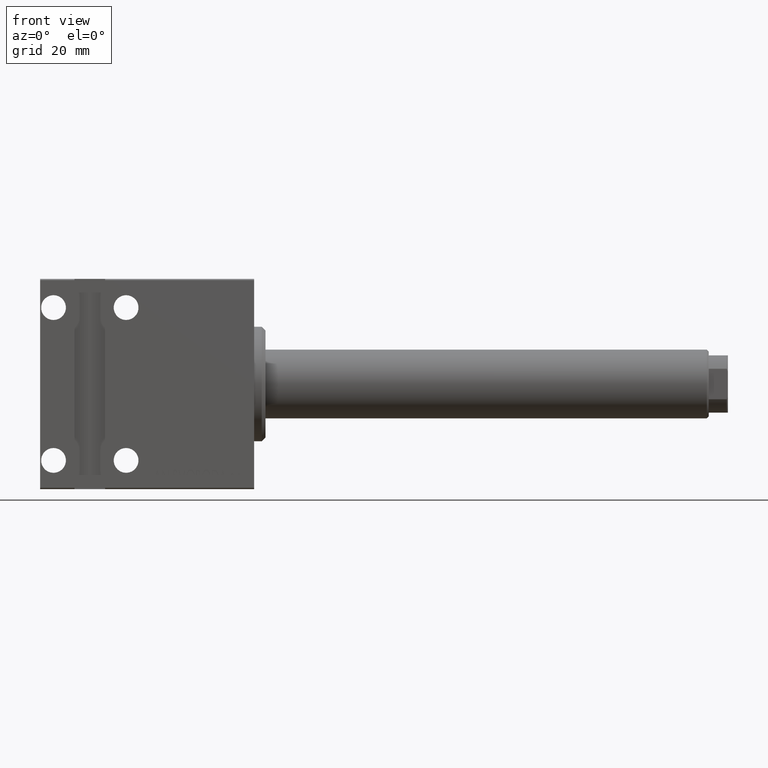
[diagram: clean part render]
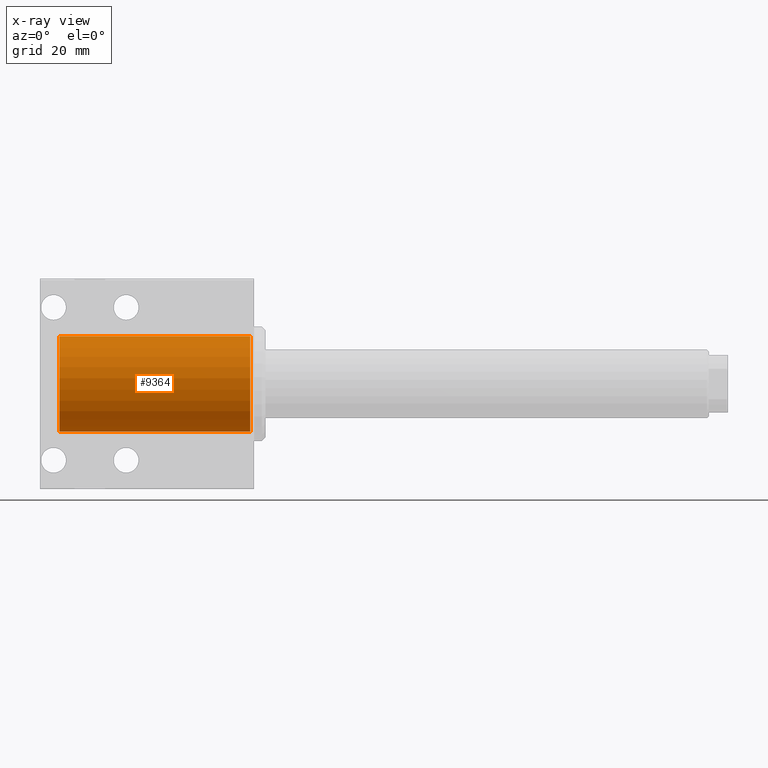
[diagram: x-ray — body ghosted, one internal face saturated and labeled with its STEP entity id]
A machine part, front view, then the same camera in x-ray: the body is ghosted and one INTERNAL B-rep face — a face not visible from any outside direction — is saturated and labeled: STEP entity #9364.
In plain terms, the highlighted cylindrical surface (partial cylindrical patch) has radius 12.5 mm, axis along (1, 0, -0).
Its self-contained STEP definition (entity closure, byte-faithful):
#61 = ORIENTED_EDGE ( 'NONE', *, *, #25060, .F. ) ;
#503 = CARTESIAN_POINT ( 'NONE',  ( 19.40812838748745861, 0.6302131261913245242, -12.48502209729472057 ) ) ;
#525 = ORIENTED_EDGE ( 'NONE', *, *, #9905, .T. ) ;
#758 = VECTOR ( 'NONE', #4144, 1000.000000000000000 ) ;
#776 = EDGE_CURVE ( 'NONE', #23426, #15998, #38261, .T. ) ;
#2163 = VECTOR ( 'NONE', #37318, 1000.000000000000000 ) ;
#2437 = CARTESIAN_POINT ( 'NONE',  ( 46.59210005007069810, 0.6298216471506188352, -12.48504232632410016 ) ) ;
#3109 = VERTEX_POINT ( 'NONE', #7844 ) ;
#3113 = ORIENTED_EDGE ( 'NONE', *, *, #8270, .T. ) ;
#3673 = FACE_OUTER_BOUND ( 'NONE', #20763, .T. ) ;
#3990 = CARTESIAN_POINT ( 'NONE',  ( 20.17178807215626080, 1.217081536676839493, -12.44076495817178518 ) ) ;
#4049 = B_SPLINE_CURVE_WITH_KNOTS ( 'NONE', 3,
 ( #39561, #9640, #18824, #35436, #28648, #5501, #5710, #42606, #12699, #39125, #41970, #25583, #19030, #42394, #2437, #15759, #39342, #22747, #12487, #25795 ),
 .UNSPECIFIED., .F., .F.,
 ( 4, 2, 2, 2, 2, 2, 2, 2, 2, 4 ),
 ( 3.184419975214869392E-19, 0.0004888140276038914619, 0.0009776280552077824901, 0.001466442082811673193, 0.001955256110415564113, 0.002444070138019454816, 0.002932884165623345519, 0.003421698193227236222, 0.003666105207029185693, 0.003910512220831134297 ),
 .UNSPECIFIED. ) ;
#4144 = DIRECTION ( 'NONE',  ( -1.000000000000000000, -0.000000000000000000, -0.000000000000000000 ) ) ;
#5178 = CARTESIAN_POINT ( 'NONE',  ( 19.28258126112023518, 0.3274810175551823299, -12.49662760657859728 ) ) ;
#5501 = CARTESIAN_POINT ( 'NONE',  ( 44.73156179855855186, 0.9992839461207311258, -12.46052872153678592 ) ) ;
#5710 = CARTESIAN_POINT ( 'NONE',  ( 44.87096400578857214, 1.092393818402958905, -12.45233295237923343 ) ) ;
#6183 = LINE ( 'NONE', #22353, #35815 ) ;
#7481 = CARTESIAN_POINT ( 'NONE',  ( 19.87096400578856503, 1.092393818402957795, -12.45233295237922988 ) ) ;
#7844 = CARTESIAN_POINT ( 'NONE',  ( 46.74999999999999289, 1.530808489232659610E-15, -12.50000000000000000 ) ) ;
#8270 = EDGE_CURVE ( 'NONE', #26517, #38352, #42839, .T. ) ;
#9364 = ADVANCED_FACE ( 'NONE', ( #3673 ), #30323, .F. ) ;
#9640 = CARTESIAN_POINT ( 'NONE',  ( 44.25000000000000711, 0.1652919547268349165, -12.49999999999999822 ) ) ;
#9905 = EDGE_CURVE ( 'NONE', #13956, #26517, #19318, .T. ) ;
#10248 = DIRECTION ( 'NONE',  ( -1.000000000000000000, -0.000000000000000000, -0.000000000000000000 ) ) ;
#10771 = CARTESIAN_POINT ( 'NONE',  ( 21.12942949289893946, 1.092322858155564624, -12.45234079746571965 ) ) ;
#10984 = CARTESIAN_POINT ( 'NONE',  ( 20.66271849804221006, 1.250059146812666278, -12.43733701935480873 ) ) ;
#12022 = CIRCLE ( 'NONE', #20372, 12.50000000000000000 ) ;
#12487 = CARTESIAN_POINT ( 'NONE',  ( 46.75000000000000000, 0.08160668645777809094, -12.50000000000000178 ) ) ;
#12569 = CARTESIAN_POINT ( 'NONE',  ( 44.25000000000000711, -5.474236978637187700E-15, -12.50000000000000000 ) ) ;
#12699 = CARTESIAN_POINT ( 'NONE',  ( 45.33637403814102385, 1.249940688489195928, -12.43734892486348187 ) ) ;
#12764 = DIRECTION ( 'NONE',  ( -1.000000000000000000, -0.000000000000000000, -0.000000000000000000 ) ) ;
#13393 = CARTESIAN_POINT ( 'NONE',  ( 21.59210005007069455, 0.6298216471506177250, -12.48504232632410016 ) ) ;
#13956 = VERTEX_POINT ( 'NONE', #15766 ) ;
#15759 = CARTESIAN_POINT ( 'NONE',  ( 46.68618554599292025, 0.4027136788383198773, -12.49374087262127730 ) ) ;
#15766 = CARTESIAN_POINT ( 'NONE',  ( 51.00000000000000000, 0.000000000000000000, 12.50000000000000000 ) ) ;
#15998 = VERTEX_POINT ( 'NONE', #31629 ) ;
#16187 = LINE ( 'NONE', #36091, #2163 ) ;
#16668 = CARTESIAN_POINT ( 'NONE',  ( 21.70983218042057672, 0.3247840173597931757, -12.49603699384459610 ) ) ;
#17102 = CARTESIAN_POINT ( 'NONE',  ( 20.33637403814102029, 1.249940688489195706, -12.43734892486348009 ) ) ;
#17308 = CARTESIAN_POINT ( 'NONE',  ( 21.75000000000000355, 1.530808489229898597E-15, -12.50000000000000000 ) ) ;
#17416 = CARTESIAN_POINT ( 'NONE',  ( 0.9999999999999991118, 0.000000000000000000, 12.50000000000000000 ) ) ;
#17465 = CARTESIAN_POINT ( 'NONE',  ( 5.000000000000000000, 1.530808498934191521E-15, -12.50000000000000000 ) ) ;
#18824 = CARTESIAN_POINT ( 'NONE',  ( 44.28258126112022808, 0.3274810175551823854, -12.49662760657860083 ) ) ;
#19030 = CARTESIAN_POINT ( 'NONE',  ( 46.26700579283598103, 1.000724903880467531, -12.46042687912547819 ) ) ;
#19318 = LINE ( 'NONE', #36145, #41509 ) ;
#19438 = ORIENTED_EDGE ( 'NONE', *, *, #21721, .F. ) ;
#20169 = CARTESIAN_POINT ( 'NONE',  ( 21.75000000000000355, 0.08160668645777809094, -12.50000000000000178 ) ) ;
#20372 = AXIS2_PLACEMENT_3D ( 'NONE', #30756, #27477, #26622 ) ;
#20380 = CARTESIAN_POINT ( 'NONE',  ( 20.82661625769911495, 1.217650415015237408, -12.44071091334782153 ) ) ;
#20729 = ORIENTED_EDGE ( 'NONE', *, *, #29811, .F. ) ;
#20763 = EDGE_LOOP ( 'NONE', ( #20729, #61, #525, #3113, #41301, #23585, #19438, #36530 ) ) ;
#20813 = CARTESIAN_POINT ( 'NONE',  ( 21.74182057507155008, 0.1644999150229029539, -12.49917457224366224 ) ) ;
#21024 = CARTESIAN_POINT ( 'NONE',  ( 21.68618554599290960, 0.4027136788383187116, -12.49374087262127908 ) ) ;
#21456 = DIRECTION ( 'NONE',  ( 0.000000000000000000, 0.000000000000000000, -1.000000000000000000 ) ) ;
#21721 = EDGE_CURVE ( 'NONE', #25561, #15998, #23387, .T. ) ;
#22353 = CARTESIAN_POINT ( 'NONE',  ( 5.000000000000000000, 1.530808498934191521E-15, -12.50000000000000000 ) ) ;
#22747 = CARTESIAN_POINT ( 'NONE',  ( 46.74182057507155008, 0.1644999150229047302, -12.49917457224366046 ) ) ;
#23003 = EDGE_CURVE ( 'NONE', #23426, #38352, #16187, .T. ) ;
#23387 = LINE ( 'NONE', #17465, #758 ) ;
#23426 = VERTEX_POINT ( 'NONE', #33118 ) ;
#23585 = ORIENTED_EDGE ( 'NONE', *, *, #776, .T. ) ;
#24718 = CARTESIAN_POINT ( 'NONE',  ( 0.9999999999999991118, 0.000000000000000000, 0.000000000000000000 ) ) ;
#24987 = VERTEX_POINT ( 'NONE', #33828 ) ;
#25060 = EDGE_CURVE ( 'NONE', #13956, #24987, #12022, .T. ) ;
#25252 = CARTESIAN_POINT ( 'NONE',  ( 19.25000000000000711, -6.097033341933280140E-15, -12.50000000000000000 ) ) ;
#25561 = VERTEX_POINT ( 'NONE', #12569 ) ;
#25583 = CARTESIAN_POINT ( 'NONE',  ( 46.12942949289892880, 1.092322858155564180, -12.45234079746571787 ) ) ;
#25795 = CARTESIAN_POINT ( 'NONE',  ( 46.74999999999999289, 1.530808489232659610E-15, -12.50000000000000000 ) ) ;
#26517 = VERTEX_POINT ( 'NONE', #17416 ) ;
#26622 = DIRECTION ( 'NONE',  ( 0.000000000000000000, 0.000000000000000000, 1.000000000000000000 ) ) ;
#26706 = CARTESIAN_POINT ( 'NONE',  ( 21.26700579283597747, 1.000724903880469530, -12.46042687912547109 ) ) ;
#27477 = DIRECTION ( 'NONE',  ( -1.000000000000000000, 0.000000000000000000, 0.000000000000000000 ) ) ;
#28648 = CARTESIAN_POINT ( 'NONE',  ( 44.50101464730786915, 0.7688263389841679674, -12.47686861699288485 ) ) ;
#29811 = EDGE_CURVE ( 'NONE', #24987, #3109, #6183, .T. ) ;
#29895 = CARTESIAN_POINT ( 'NONE',  ( 5.000000000000000000, 0.000000000000000000, 0.000000000000000000 ) ) ;
#30197 = CARTESIAN_POINT ( 'NONE',  ( 19.50101464730787626, 0.7688263389841715201, -12.47686861699288130 ) ) ;
#30323 = CYLINDRICAL_SURFACE ( 'NONE', #40785, 12.50000000000000000 ) ;
#30423 = CARTESIAN_POINT ( 'NONE',  ( 19.73156179855854475, 0.9992839461207333462, -12.46052872153677704 ) ) ;
#30756 = CARTESIAN_POINT ( 'NONE',  ( 51.00000000000000000, 0.000000000000000000, 0.000000000000000000 ) ) ;
#31279 = EDGE_CURVE ( 'NONE', #25561, #3109, #4049, .T. ) ;
#31629 = CARTESIAN_POINT ( 'NONE',  ( 21.75000000000000355, 1.530808489229898597E-15, -12.50000000000000000 ) ) ;
#33118 = CARTESIAN_POINT ( 'NONE',  ( 19.25000000000000711, -6.097033341933280140E-15, -12.50000000000000000 ) ) ;
#33689 = CARTESIAN_POINT ( 'NONE',  ( 21.50048674858791742, 0.7673164180378984067, -12.47697534893327997 ) ) ;
#33828 = CARTESIAN_POINT ( 'NONE',  ( 51.00000000000000000, 1.530808498934191521E-15, -12.50000000000000000 ) ) ;
#35106 = CARTESIAN_POINT ( 'NONE',  ( 19.25000000000001066, 0.1652919547268353884, -12.50000000000000000 ) ) ;
#35436 = CARTESIAN_POINT ( 'NONE',  ( 44.40812838748746572, 0.6302131261913243021, -12.48502209729471701 ) ) ;
#35815 = VECTOR ( 'NONE', #38957, 1000.000000000000000 ) ;
#36091 = CARTESIAN_POINT ( 'NONE',  ( 5.000000000000000000, 1.530808498934191521E-15, -12.50000000000000000 ) ) ;
#36145 = CARTESIAN_POINT ( 'NONE',  ( 5.000000000000000000, 0.000000000000000000, 12.50000000000000000 ) ) ;
#36530 = ORIENTED_EDGE ( 'NONE', *, *, #31279, .T. ) ;
#37099 = DIRECTION ( 'NONE',  ( 0.000000000000000000, 0.000000000000000000, 1.000000000000000000 ) ) ;
#37318 = DIRECTION ( 'NONE',  ( -1.000000000000000000, -0.000000000000000000, -0.000000000000000000 ) ) ;
#38060 = DIRECTION ( 'NONE',  ( -1.000000000000000000, 0.000000000000000000, 0.000000000000000000 ) ) ;
#38261 = B_SPLINE_CURVE_WITH_KNOTS ( 'NONE', 3,
 ( #25252, #35106, #5178, #503, #30197, #30423, #7481, #3990, #17102, #10984, #20380, #10771, #26706, #33689, #13393, #21024, #16668, #20813, #20169, #17308 ),
 .UNSPECIFIED., .F., .F.,
 ( 4, 2, 2, 2, 2, 2, 2, 2, 2, 4 ),
 ( 2.867420172902568752E-19, 0.0004888140276038928714, 0.0009776280552077853091, 0.001466442082811677530, 0.001955256110415570184, 0.002444070138019462188, 0.002932884165623354626, 0.003421698193227247498, 0.003666105207029193933, 0.003910512220831139502 ),
 .UNSPECIFIED. ) ;
#38352 = VERTEX_POINT ( 'NONE', #40637 ) ;
#38957 = DIRECTION ( 'NONE',  ( -1.000000000000000000, -0.000000000000000000, -0.000000000000000000 ) ) ;
#39125 = CARTESIAN_POINT ( 'NONE',  ( 45.66271849804221716, 1.250059146812665167, -12.43733701935480163 ) ) ;
#39342 = CARTESIAN_POINT ( 'NONE',  ( 46.70983218042055540, 0.3247840173597945634, -12.49603699384459432 ) ) ;
#39561 = CARTESIAN_POINT ( 'NONE',  ( 44.25000000000000711, -5.474236978637187700E-15, -12.50000000000000000 ) ) ;
#40637 = CARTESIAN_POINT ( 'NONE',  ( 0.9999999999999991118, 1.530808498934191521E-15, -12.50000000000000000 ) ) ;
#40785 = AXIS2_PLACEMENT_3D ( 'NONE', #29895, #10248, #37099 ) ;
#41301 = ORIENTED_EDGE ( 'NONE', *, *, #23003, .F. ) ;
#41471 = AXIS2_PLACEMENT_3D ( 'NONE', #24718, #38060, #21456 ) ;
#41509 = VECTOR ( 'NONE', #12764, 1000.000000000000000 ) ;
#41970 = CARTESIAN_POINT ( 'NONE',  ( 45.82661625769911495, 1.217650415015236298, -12.44071091334781975 ) ) ;
#42394 = CARTESIAN_POINT ( 'NONE',  ( 46.50048674858793873, 0.7673164180378950761, -12.47697534893327465 ) ) ;
#42606 = CARTESIAN_POINT ( 'NONE',  ( 45.17178807215625369, 1.217081536676840603, -12.44076495817178696 ) ) ;
#42839 = CIRCLE ( 'NONE', #41471, 12.50000000000000000 ) ;